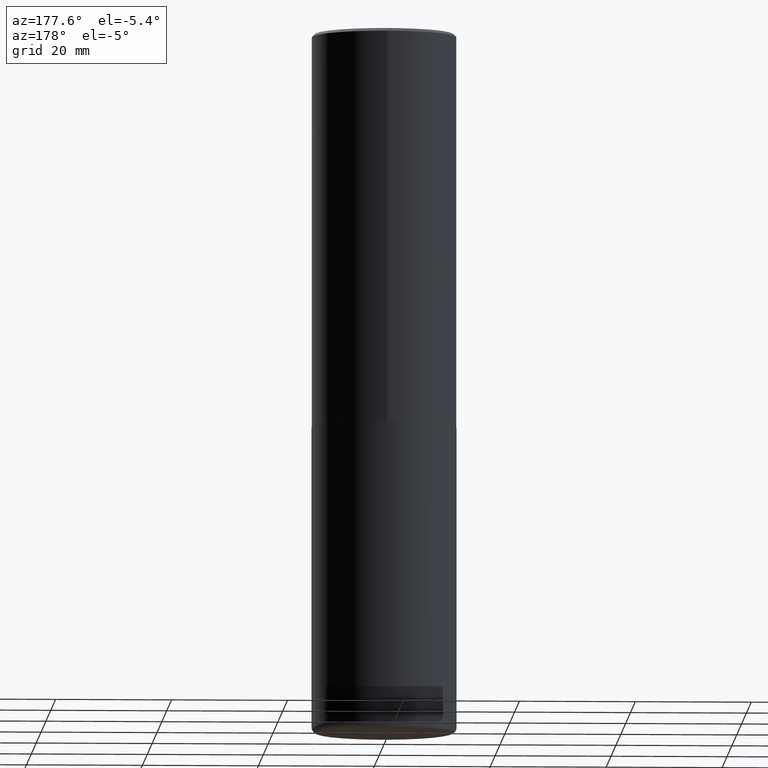
[diagram: clean part render]
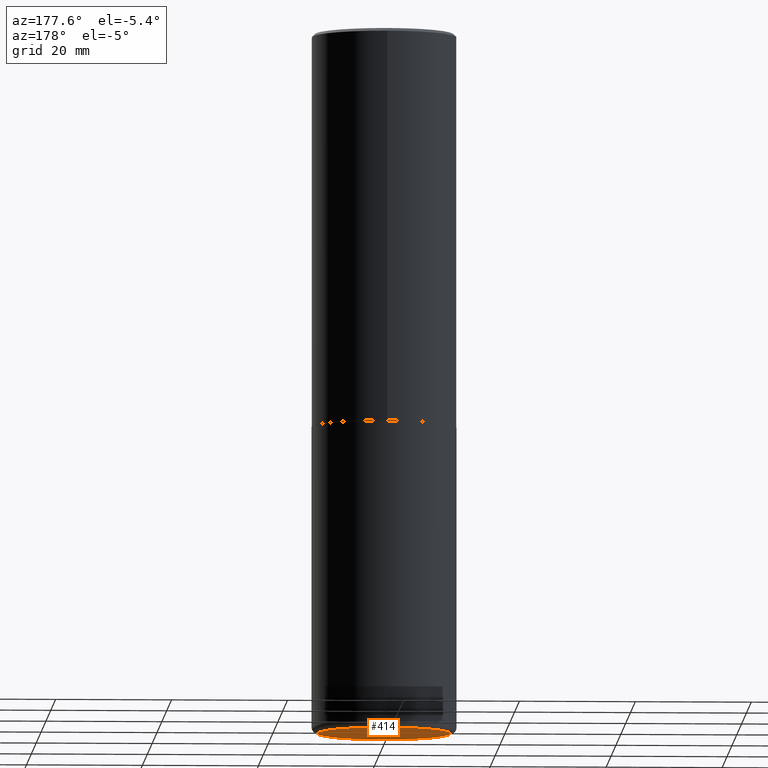
[diagram: same view with one face highlighted and labeled with its STEP entity id]
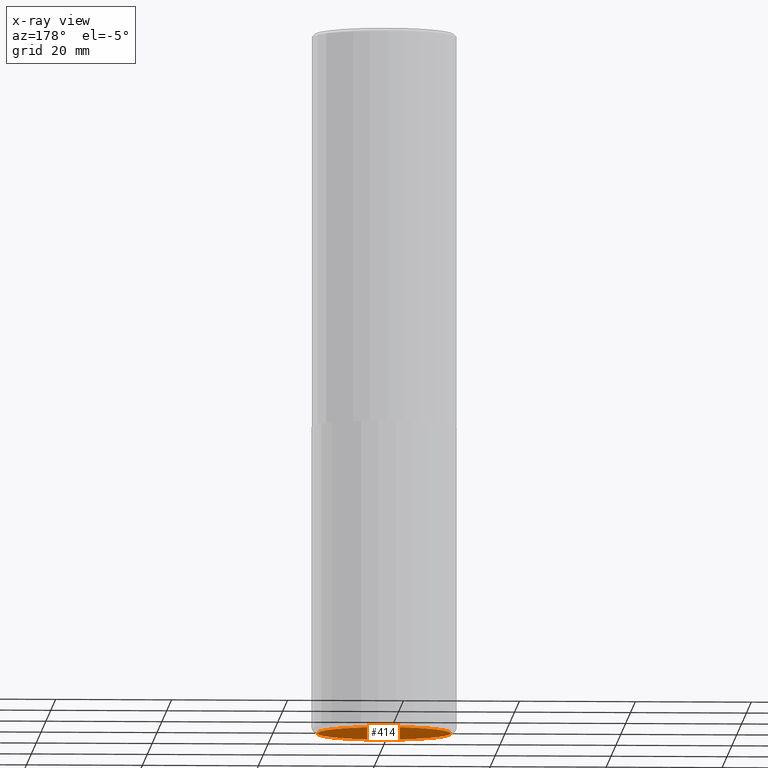
[diagram: x-ray of the same camera — body ghosted, the highlighted face saturated]
A machine part, auxiliary view. The second image highlights one B-rep face of the part: STEP entity #414.
The next image is the same camera in x-ray: the body ghosted, the highlighted face saturated — about 0% of this face is hidden behind the body in this view.
In plain terms, the highlighted planar face has unit normal (0, -0, -1).
Its self-contained STEP definition (entity closure, byte-faithful):
#7 = EDGE_CURVE ( 'NONE', #388, #70, #258, .T. ) ;
#18 = ORIENTED_EDGE ( 'NONE', *, *, #7, .F. ) ;
#23 = DIRECTION ( 'NONE',  ( 1.000000000000000000, -6.982962677686269077E-15, 0.000000000000000000 ) ) ;
#43 = PLANE ( 'NONE',  #115 ) ;
#59 = CARTESIAN_POINT ( 'NONE',  ( 1.164972429890475522E-28, -1.663271880198097847E-14, -4.763799999999999812 ) ) ;
#70 = VERTEX_POINT ( 'NONE', #410 ) ;
#109 = FACE_OUTER_BOUND ( 'NONE', #272, .T. ) ;
#114 = AXIS2_PLACEMENT_3D ( 'NONE', #59, #119, #380 ) ;
#115 = AXIS2_PLACEMENT_3D ( 'NONE', #364, #153, #232 ) ;
#119 = DIRECTION ( 'NONE',  ( -2.445468806185136597E-29, 3.491481338843145583E-15, 1.000000000000000000 ) ) ;
#153 = DIRECTION ( 'NONE',  ( 2.438088387897960049E-29, -3.491481338843145188E-15, -1.000000000000000000 ) ) ;
#172 = EDGE_CURVE ( 'NONE', #70, #388, #320, .T. ) ;
#178 = CARTESIAN_POINT ( 'NONE',  ( -0.4527499999999999858, -1.320697746450717054E-14, -4.763799999999999812 ) ) ;
#212 = CARTESIAN_POINT ( 'NONE',  ( 1.164972429890475522E-28, -1.663271880198097847E-14, -4.763799999999999812 ) ) ;
#222 = AXIS2_PLACEMENT_3D ( 'NONE', #212, #269, #23 ) ;
#232 = DIRECTION ( 'NONE',  ( -1.000000000000000000, 6.982962677686265922E-15, -4.876176775795935793E-29 ) ) ;
#258 = CIRCLE ( 'NONE', #222, 0.4527499999999999858 ) ;
#269 = DIRECTION ( 'NONE',  ( -2.445468806185136597E-29, 3.491481338843145583E-15, 1.000000000000000000 ) ) ;
#272 = EDGE_LOOP ( 'NONE', ( #401, #18 ) ) ;
#320 = CIRCLE ( 'NONE', #114, 0.4527499999999999858 ) ;
#364 = CARTESIAN_POINT ( 'NONE',  ( 7.635318159677945866E-29, -2.238157687916168233E-14, -4.763799999999999812 ) ) ;
#380 = DIRECTION ( 'NONE',  ( 1.000000000000000000, -6.982962677686269077E-15, 0.000000000000000000 ) ) ;
#388 = VERTEX_POINT ( 'NONE', #178 ) ;
#401 = ORIENTED_EDGE ( 'NONE', *, *, #172, .F. ) ;
#410 = CARTESIAN_POINT ( 'NONE',  ( 0.4527499999999999858, -1.979425515430343739E-14, -4.763799999999999812 ) ) ;
#414 = ADVANCED_FACE ( 'NONE', ( #109 ), #43, .T. ) ;